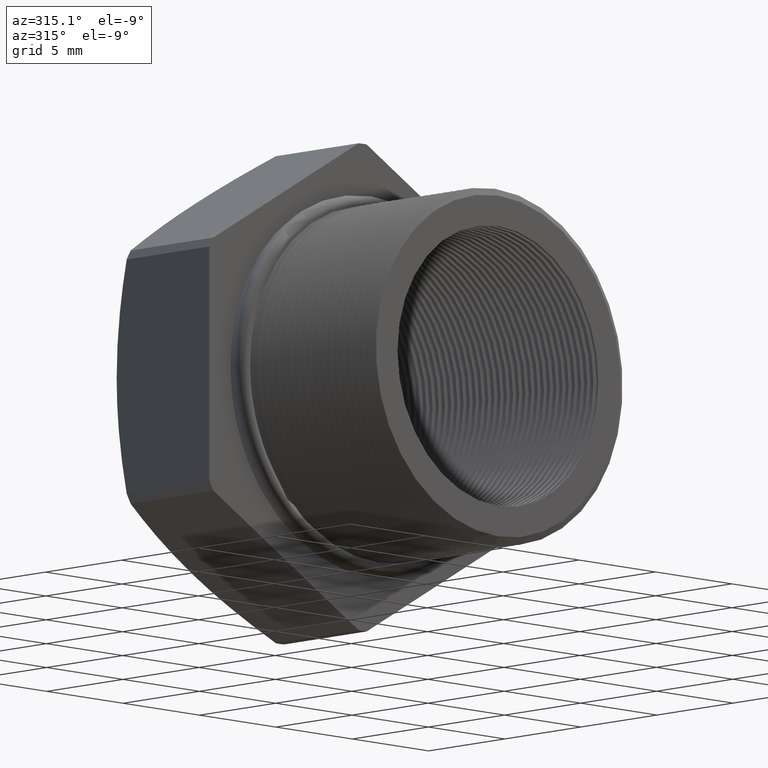
[diagram: clean part render]
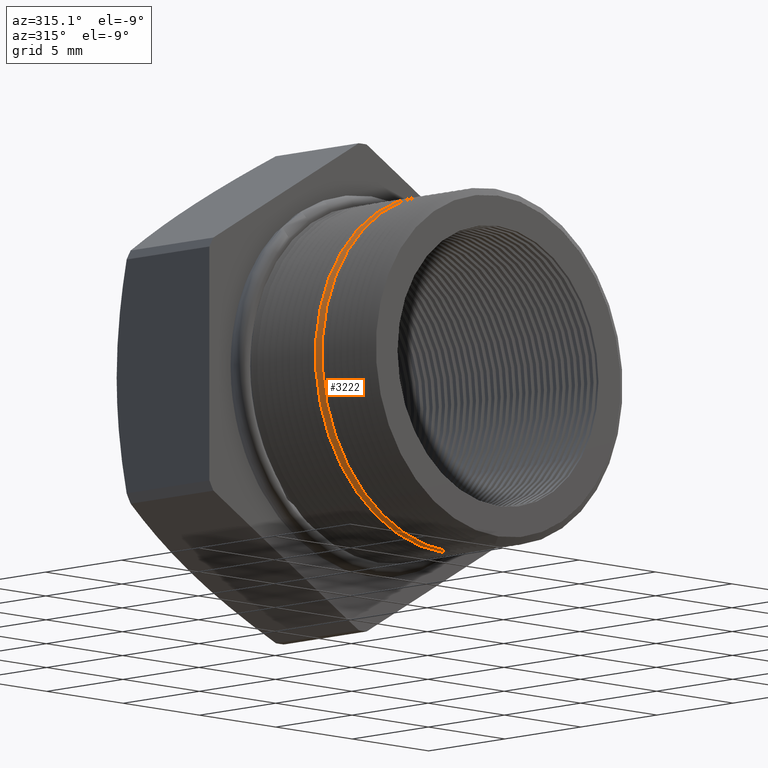
[diagram: same view with one face highlighted and labeled with its STEP entity id]
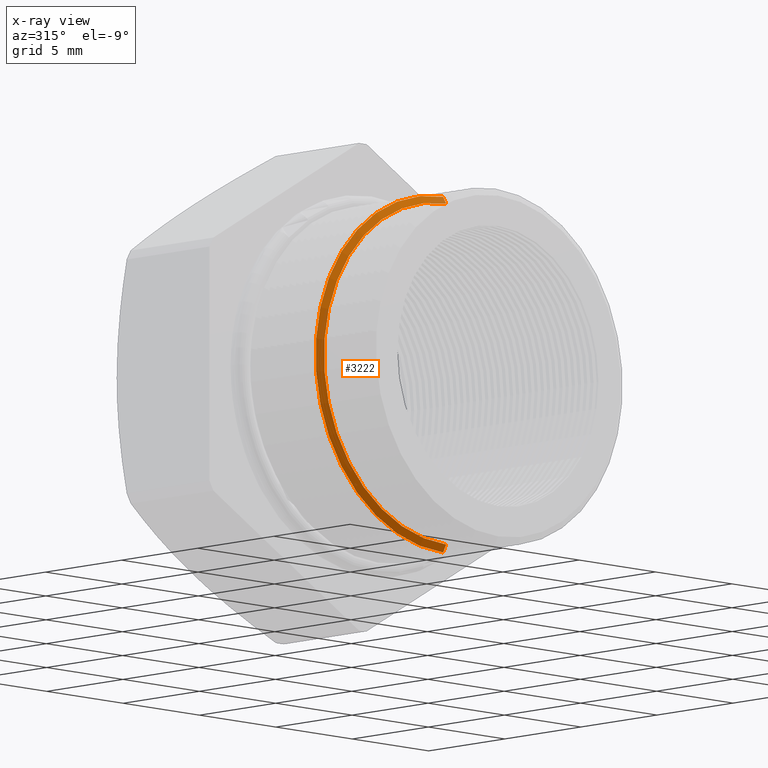
[diagram: x-ray of the same camera — body ghosted, the highlighted face saturated]
A machine part, auxiliary view. The second image highlights one B-rep face of the part: STEP entity #3222.
The next image is the same camera in x-ray: the body ghosted, the highlighted face saturated — about 2% of this face is hidden behind the body in this view.
In plain terms, the highlighted conical surface has half-angle 60 deg.
Its self-contained STEP definition (entity closure, byte-faithful):
#304 = VERTEX_POINT ( 'NONE', #4873 ) ;
#368 = VERTEX_POINT ( 'NONE', #5014 ) ;
#374 = EDGE_CURVE ( 'NONE', #375, #368, #5009, .T. ) ;
#375 = VERTEX_POINT ( 'NONE', #5005 ) ;
#437 = EDGE_CURVE ( 'NONE', #375, #304, #5131, .T. ) ;
#617 = EDGE_LOOP ( 'NONE', ( #2970, #3620, #3619, #3621 ) ) ;
#625 = EDGE_CURVE ( 'NONE', #368, #9256, #5452, .T. ) ;
#1739 = CARTESIAN_POINT ( 'NONE',  ( 4.026318816969966200E-017, -0.04044510941705203200, 0.3287738815610546400 ) ) ;
#1741 = DIRECTION ( 'NONE',  ( 0.0000000000000000000, 0.4999999999999991100, 0.8660254037844391500 ) ) ;
#1742 = VECTOR ( 'NONE', #1741, 39.37007874015748100 ) ;
#1743 = CARTESIAN_POINT ( 'NONE',  ( 0.0000000000000000000, -0.04044510941705203200, 0.3287738815610546400 ) ) ;
#1744 = LINE ( 'NONE', #1743, #1742 ) ;
#2970 = ORIENTED_EDGE ( 'NONE', *, *, #374, .F. ) ;
#3222 = ADVANCED_FACE ( 'NONE', ( #7944 ), #7943, .T. ) ;
#3619 = ORIENTED_EDGE ( 'NONE', *, *, #9252, .T. ) ;
#3620 = ORIENTED_EDGE ( 'NONE', *, *, #437, .T. ) ;
#3621 = ORIENTED_EDGE ( 'NONE', *, *, #625, .F. ) ;
#4873 = CARTESIAN_POINT ( 'NONE',  ( 3.857637417314162700E-017, -0.04839746364411293800, 0.3150000000000000000 ) ) ;
#5005 = CARTESIAN_POINT ( 'NONE',  ( 0.0000000000000000000, -0.04839746364411293800, -0.3150000000000000000 ) ) ;
#5006 = DIRECTION ( 'NONE',  ( 1.060575238724907500E-016, 0.4999999999999991100, -0.8660254037844391500 ) ) ;
#5007 = VECTOR ( 'NONE', #5006, 39.37007874015748100 ) ;
#5008 = CARTESIAN_POINT ( 'NONE',  ( 4.026318816969965600E-017, -0.04044510941705203200, -0.3287738815610546400 ) ) ;
#5009 = LINE ( 'NONE', #5008, #5007 ) ;
#5014 = CARTESIAN_POINT ( 'NONE',  ( 0.0000000000000000000, -0.04044510941705203200, -0.3287738815610546400 ) ) ;
#5127 = DIRECTION ( 'NONE',  ( 0.0000000000000000000, 0.0000000000000000000, 1.000000000000000000 ) ) ;
#5128 = DIRECTION ( 'NONE',  ( -0.0000000000000000000, 1.000000000000000000, -0.0000000000000000000 ) ) ;
#5129 = CARTESIAN_POINT ( 'NONE',  ( 0.0000000000000000000, -0.04839746364411293800, 0.0000000000000000000 ) ) ;
#5130 = AXIS2_PLACEMENT_3D ( 'NONE', #5129, #5128, #5127 ) ;
#5131 = CIRCLE ( 'NONE', #5130, 0.3150000000000000000 ) ;
#5448 = DIRECTION ( 'NONE',  ( 0.0000000000000000000, 0.0000000000000000000, 1.000000000000000000 ) ) ;
#5449 = DIRECTION ( 'NONE',  ( -0.0000000000000000000, 1.000000000000000000, -0.0000000000000000000 ) ) ;
#5450 = CARTESIAN_POINT ( 'NONE',  ( 0.0000000000000000000, -0.04044510941705203200, 0.0000000000000000000 ) ) ;
#5451 = AXIS2_PLACEMENT_3D ( 'NONE', #5450, #5449, #5448 ) ;
#5452 = CIRCLE ( 'NONE', #5451, 0.3287738815610546400 ) ;
#7938 = DIRECTION ( 'NONE',  ( 0.0000000000000000000, 0.0000000000000000000, 1.000000000000000000 ) ) ;
#7939 = DIRECTION ( 'NONE',  ( -0.0000000000000000000, 1.000000000000000000, -0.0000000000000000000 ) ) ;
#7940 = CARTESIAN_POINT ( 'NONE',  ( 0.0000000000000000000, -0.04044510941705203200, 0.0000000000000000000 ) ) ;
#7941 = AXIS2_PLACEMENT_3D ( 'NONE', #7940, #7939, #7938 ) ;
#7943 = CONICAL_SURFACE ( 'NONE', #7941, 0.3287738815610546400, 1.047197551196598700 ) ;
#7944 = FACE_OUTER_BOUND ( 'NONE', #617, .T. ) ;
#9252 = EDGE_CURVE ( 'NONE', #304, #9256, #1744, .T. ) ;
#9256 = VERTEX_POINT ( 'NONE', #1739 ) ;